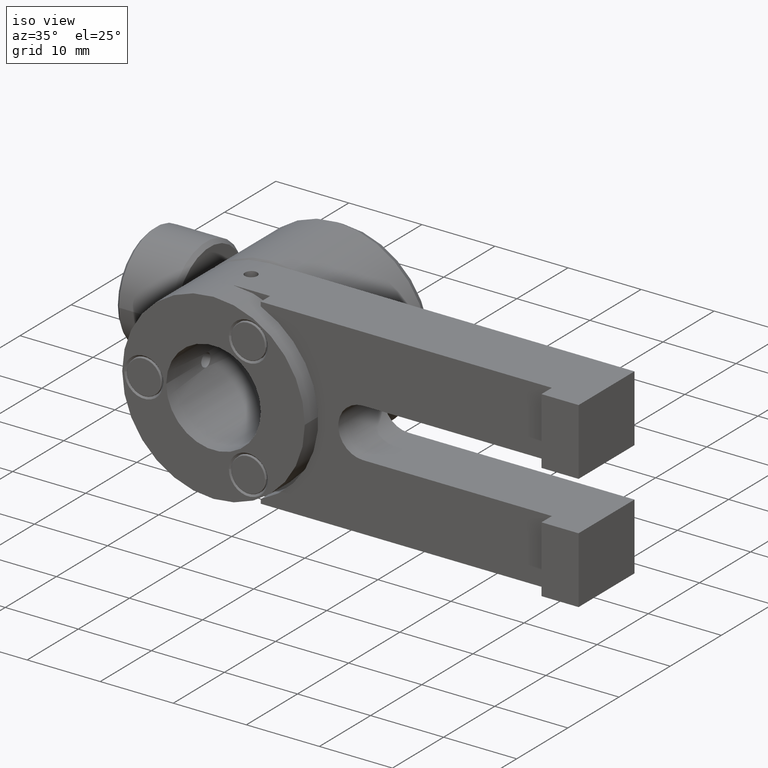
[diagram: clean part render]
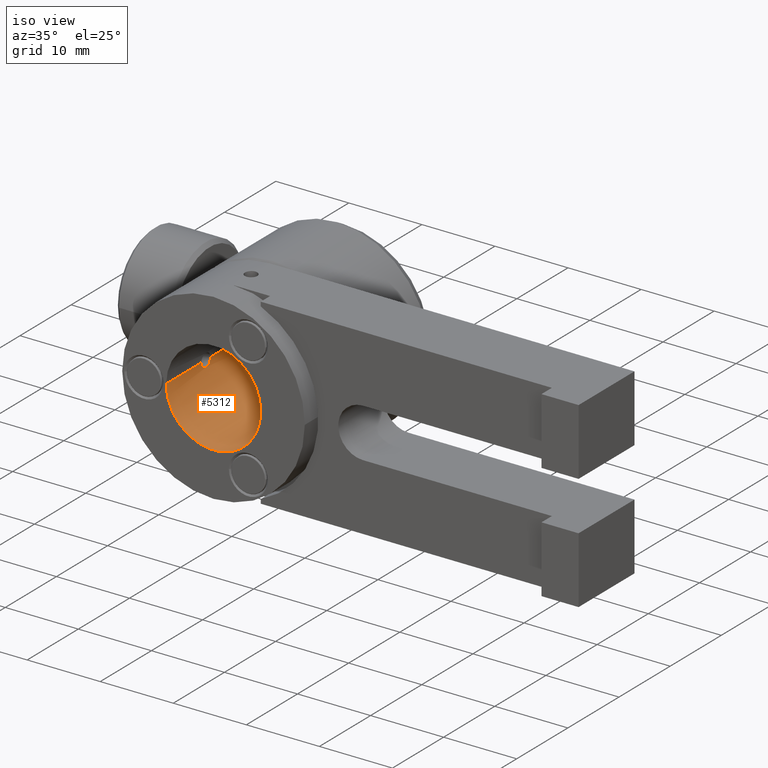
[diagram: same view with one face highlighted and labeled with its STEP entity id]
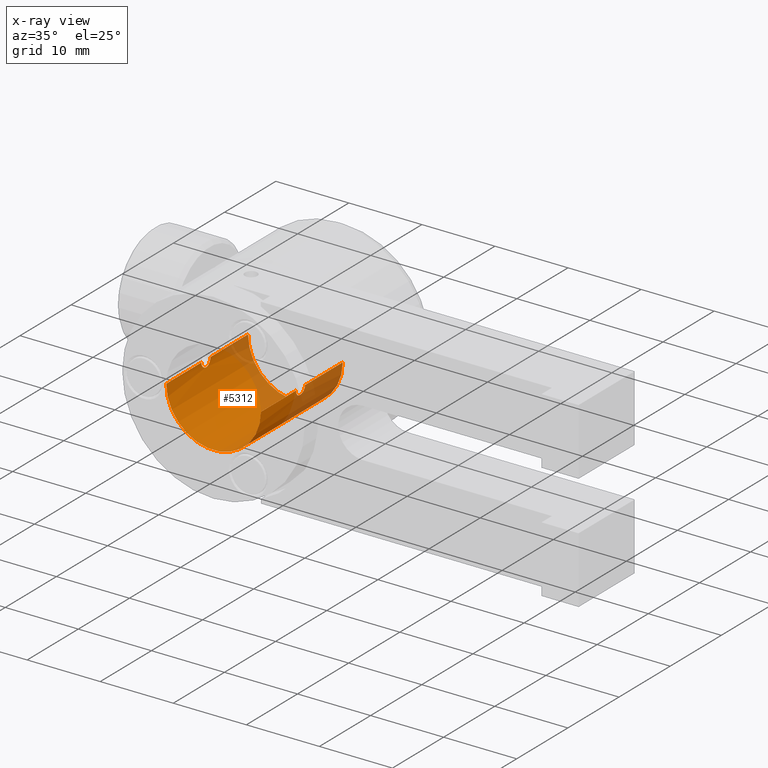
[diagram: x-ray of the same camera — body ghosted, the highlighted face saturated]
A machine part, iso view. The second image highlights one B-rep face of the part: STEP entity #5312.
The next image is the same camera in x-ray: the body ghosted, the highlighted face saturated — about 24% of this face is hidden behind the body in this view.
In plain terms, the highlighted cylindrical surface (partial cylindrical patch) has radius 6.477 mm, axis along (0, 1, 0).
Its self-contained STEP definition (entity closure, byte-faithful):
#13 = CARTESIAN_POINT ( 'NONE',  ( -2.350649786499912100, 3.439816570402018900, -0.2326646441831022900 ) ) ;
#176 = CARTESIAN_POINT ( 'NONE',  ( 10.56140071543600800, 3.119592693218902200, -0.7115586774158586500 ) ) ;
#194 = CARTESIAN_POINT ( 'NONE',  ( 10.54208502654246600, 2.806598565896670600, -0.8658817823050213300 ) ) ;
#207 = CARTESIAN_POINT ( 'NONE',  ( 10.60006664389255900, 3.462934787773486200, -6.101397910709939800E-013 ) ) ;
#281 = CARTESIAN_POINT ( 'NONE',  ( 4.123066643891380800, 10.82893478776489400, 1.457167719820518700E-013 ) ) ;
#315 = DIRECTION ( 'NONE',  ( 0.0000000000000000000, 1.000000000000000000, 0.0000000000000000000 ) ) ;
#352 = CARTESIAN_POINT ( 'NONE',  ( -2.295984162816225600, 2.340651364928596000, -0.8656286810699233000 ) ) ;
#399 = VERTEX_POINT ( 'NONE', #6591 ) ;
#412 = ORIENTED_EDGE ( 'NONE', *, *, #639, .F. ) ;
#532 = DIRECTION ( 'NONE',  ( 0.0000000000000000000, 1.000000000000000000, 0.0000000000000000000 ) ) ;
#618 = CARTESIAN_POINT ( 'NONE',  ( -2.353933356108619100, 10.82893478776489400, -8.437002138594873400E-014 ) ) ;
#639 = EDGE_CURVE ( 'NONE', #5854, #399, #4913, .T. ) ;
#817 = CARTESIAN_POINT ( 'NONE',  ( 10.53876676157147700, 2.573934787764893300, -0.8889999999996226500 ) ) ;
#884 = EDGE_CURVE ( 'NONE', #6459, #6173, #3382, .T. ) ;
#901 = CARTESIAN_POINT ( 'NONE',  ( -2.353933356108619100, 1.684934787764897000, -8.433794940138831300E-014 ) ) ;
#932 = B_SPLINE_CURVE_WITH_KNOTS ( 'NONE', 3,
 ( #2225, #5083, #2249, #4470, #3399, #1623, #5587, #13, #3959, #4538 ),
 .UNSPECIFIED., .F., .F.,
 ( 4, 2, 2, 2, 4 ),
 ( 0.001391681021688470100, 0.001739436585783829900, 0.002087192149879189700, 0.002434947713974549900, 0.002782703278069909600 ),
 .UNSPECIFIED. ) ;
#1152 = CARTESIAN_POINT ( 'NONE',  ( -2.353933356108619100, -5.173065212235105300, -8.437002138594873400E-014 ) ) ;
#1154 = CARTESIAN_POINT ( 'NONE',  ( -2.353933356110145400, 3.462934787776023300, -1.396743876756858700E-012 ) ) ;
#1295 = CARTESIAN_POINT ( 'NONE',  ( 10.57756416844688000, 3.285366602814805400, -0.5458232989944384900 ) ) ;
#1446 = CARTESIAN_POINT ( 'NONE',  ( -2.315342460842459100, 2.027529981182903700, -0.7107662629022814000 ) ) ;
#1452 = EDGE_CURVE ( 'NONE', #399, #6173, #3769, .T. ) ;
#1567 = EDGE_CURVE ( 'NONE', #5854, #5016, #6142, .T. ) ;
#1623 = CARTESIAN_POINT ( 'NONE',  ( -2.331444659362095000, 3.285489353846622300, -0.5456630955220790300 ) ) ;
#1655 = ORIENTED_EDGE ( 'NONE', *, *, #884, .T. ) ;
#1745 = DIRECTION ( 'NONE',  ( 0.0000000000000000000, 1.000000000000000000, 0.0000000000000000000 ) ) ;
#1927 = CARTESIAN_POINT ( 'NONE',  ( 10.60006664389135400, 3.462934787764695400, -0.1160958163433591200 ) ) ;
#2011 = EDGE_CURVE ( 'NONE', #2864, #5446, #7095, .T. ) ;
#2093 = CARTESIAN_POINT ( 'NONE',  ( 10.57746346457863300, 1.863518528122982700, -0.5468734685551206500 ) ) ;
#2168 = VECTOR ( 'NONE', #3482, 1000.000000000000000 ) ;
#2225 = CARTESIAN_POINT ( 'NONE',  ( -2.292633473787409700, 2.573934787764406100, -0.8890000000090452200 ) ) ;
#2240 = CARTESIAN_POINT ( 'NONE',  ( 10.54211620212188700, 2.340669037810438900, -0.8656388751137895600 ) ) ;
#2249 = CARTESIAN_POINT ( 'NONE',  ( -2.295949454246609000, 2.806579105618423100, -0.8659013694511149600 ) ) ;
#2436 = CARTESIAN_POINT ( 'NONE',  ( 10.53876676157147900, 2.690018313488122800, -0.8889999999996225400 ) ) ;
#2443 = VERTEX_POINT ( 'NONE', #7077 ) ;
#2463 = VECTOR ( 'NONE', #532, 1000.000000000000000 ) ;
#2622 = B_SPLINE_CURVE_WITH_KNOTS ( 'NONE', 3,
 ( #901, #2651, #6641, #7184, #4309, #1446, #5484, #352, #6013, #3798 ),
 .UNSPECIFIED., .F., .F.,
 ( 4, 2, 2, 2, 4 ),
 ( 3.116236741932552800E-020, 0.0003479202554221178000, 0.0006958405108442354900, 0.001043760766266352800, 0.001391681021688470100 ),
 .UNSPECIFIED. ) ;
#2631 = CARTESIAN_POINT ( 'NONE',  ( 10.59677290552062200, 1.708122718052808700, -0.2330062151327999000 ) ) ;
#2651 = CARTESIAN_POINT ( 'NONE',  ( -2.353933356108614600, 1.684934787764897000, -0.1176538529103875300 ) ) ;
#2698 = LINE ( 'NONE', #3988, #2168 ) ;
#2709 = EDGE_LOOP ( 'NONE', ( #4205, #1655, #6841, #412, #4314, #3253, #5856, #7151, #4045, #5008 ) ) ;
#2790 = CARTESIAN_POINT ( 'NONE',  ( 10.58542393949339600, 1.797520211509415300, -0.4484449153770192500 ) ) ;
#2864 = VERTEX_POINT ( 'NONE', #1152 ) ;
#2917 = EDGE_CURVE ( 'NONE', #2443, #6089, #932, .T. ) ;
#3070 = CARTESIAN_POINT ( 'NONE',  ( 10.59678535939234600, 3.439836217591347300, -0.2326448646585872200 ) ) ;
#3184 = CARTESIAN_POINT ( 'NONE',  ( 10.53876676157147700, 2.573934787764893300, -0.8889999999996226500 ) ) ;
#3212 = CARTESIAN_POINT ( 'NONE',  ( 10.56147533571487600, 2.027528870873269700, -0.7107759327374647600 ) ) ;
#3253 = ORIENTED_EDGE ( 'NONE', *, *, #6742, .T. ) ;
#3382 = LINE ( 'NONE', #6941, #3984 ) ;
#3399 = CARTESIAN_POINT ( 'NONE',  ( -2.315281350966472900, 3.119754024852675800, -0.7114348000705564800 ) ) ;
#3422 = EDGE_CURVE ( 'NONE', #5446, #2443, #2622, .T. ) ;
#3464 = AXIS2_PLACEMENT_3D ( 'NONE', #281, #5377, #3643 ) ;
#3482 = DIRECTION ( 'NONE',  ( 0.0000000000000000000, 1.000000000000000000, 0.0000000000000000000 ) ) ;
#3628 = CARTESIAN_POINT ( 'NONE',  ( 10.55348117825176100, 3.021781324600053800, -0.7767349445126644500 ) ) ;
#3643 = DIRECTION ( 'NONE',  ( -1.000000000000000000, 0.0000000000000000000, -3.552366734105304900E-014 ) ) ;
#3666 = DIRECTION ( 'NONE',  ( 0.0000000000000000000, 1.000000000000000000, 0.0000000000000000000 ) ) ;
#3769 = B_SPLINE_CURVE_WITH_KNOTS ( 'NONE', 3,
 ( #3184, #6203, #2240, #6228, #3212, #2093, #2790, #2631, #5651, #4318 ),
 .UNSPECIFIED., .F., .F.,
 ( 4, 2, 2, 2, 4 ),
 ( 0.002782701282795828300, 0.003130604781071176000, 0.003478508279346524200, 0.003826411777621871900, 0.004174315275897219600 ),
 .UNSPECIFIED. ) ;
#3798 = CARTESIAN_POINT ( 'NONE',  ( -2.292633473787409700, 2.573934787764406100, -0.8890000000090452200 ) ) ;
#3834 = CIRCLE ( 'NONE', #4879, 6.477000000000000300 ) ;
#3959 = CARTESIAN_POINT ( 'NONE',  ( -2.353933356108578700, 3.462934787764639000, -0.1160834768496296900 ) ) ;
#3978 = CARTESIAN_POINT ( 'NONE',  ( -2.353933356108619100, 10.82893478776489400, -8.437002138594873400E-014 ) ) ;
#3984 = VECTOR ( 'NONE', #6894, 1000.000000000000000 ) ;
#3988 = CARTESIAN_POINT ( 'NONE',  ( -2.353933356108619100, 10.82893478776489400, -8.437002138594873400E-014 ) ) ;
#4045 = ORIENTED_EDGE ( 'NONE', *, *, #3422, .F. ) ;
#4129 = EDGE_CURVE ( 'NONE', #6089, #4130, #2698, .T. ) ;
#4130 = VERTEX_POINT ( 'NONE', #618 ) ;
#4205 = ORIENTED_EDGE ( 'NONE', *, *, #4235, .F. ) ;
#4235 = EDGE_CURVE ( 'NONE', #6459, #2864, #3834, .T. ) ;
#4298 = CARTESIAN_POINT ( 'NONE',  ( 10.60006664389137900, -5.173065212235105300, 3.765967690818601100E-013 ) ) ;
#4309 = CARTESIAN_POINT ( 'NONE',  ( -2.331321698447613900, 1.863600157849001800, -0.5469658185647463500 ) ) ;
#4314 = ORIENTED_EDGE ( 'NONE', *, *, #1567, .T. ) ;
#4318 = CARTESIAN_POINT ( 'NONE',  ( 10.60006664389137900, 1.684934787764896800, 3.765967690818600100E-013 ) ) ;
#4470 = CARTESIAN_POINT ( 'NONE',  ( -2.307358124755231300, 3.021950876425407300, -0.7766531687620728000 ) ) ;
#4538 = CARTESIAN_POINT ( 'NONE',  ( -2.353933356110145400, 3.462934787776023300, -1.396743876756858700E-012 ) ) ;
#4598 = CARTESIAN_POINT ( 'NONE',  ( 10.60006664389138100, 10.82893478776489400, 3.765967690818602100E-013 ) ) ;
#4612 = VECTOR ( 'NONE', #1745, 1000.000000000000000 ) ;
#4879 = AXIS2_PLACEMENT_3D ( 'NONE', #5917, #3666, #6579 ) ;
#4913 = B_SPLINE_CURVE_WITH_KNOTS ( 'NONE', 3,
 ( #7014, #1927, #3070, #6496, #1295, #176, #3628, #194, #2436, #817 ),
 .UNSPECIFIED., .F., .F.,
 ( 4, 2, 2, 2, 4 ),
 ( 0.001391679286587575300, 0.001739434785639638400, 0.002087190284691701700, 0.002434945783743765200, 0.002782701282795828300 ),
 .UNSPECIFIED. ) ;
#5008 = ORIENTED_EDGE ( 'NONE', *, *, #2011, .F. ) ;
#5016 = VERTEX_POINT ( 'NONE', #6735 ) ;
#5083 = CARTESIAN_POINT ( 'NONE',  ( -2.292633473788652200, 2.690029918220298900, -0.8890000000000740600 ) ) ;
#5312 = ADVANCED_FACE ( 'NONE', ( #6501 ), #7028, .F. ) ;
#5377 = DIRECTION ( 'NONE',  ( 0.0000000000000000000, 1.000000000000000000, 0.0000000000000000000 ) ) ;
#5446 = VERTEX_POINT ( 'NONE', #5491 ) ;
#5484 = CARTESIAN_POINT ( 'NONE',  ( -2.307317970403978300, 2.126660616765645000, -0.7769684580586236900 ) ) ;
#5491 = CARTESIAN_POINT ( 'NONE',  ( -2.353933356108619100, 1.684934787764897000, -8.433794940138831300E-014 ) ) ;
#5587 = CARTESIAN_POINT ( 'NONE',  ( -2.339329763125724200, 3.350667793251574700, -0.4478503503887892300 ) ) ;
#5651 = CARTESIAN_POINT ( 'NONE',  ( 10.60006664389138300, 1.684934787764896600, -0.1175684763302868600 ) ) ;
#5781 = CARTESIAN_POINT ( 'NONE',  ( 10.60006664389137900, 1.684934787764896800, 3.765967690818600100E-013 ) ) ;
#5854 = VERTEX_POINT ( 'NONE', #207 ) ;
#5856 = ORIENTED_EDGE ( 'NONE', *, *, #4129, .F. ) ;
#5917 = CARTESIAN_POINT ( 'NONE',  ( 4.123066643891380800, -5.173065212235105300, 1.457167719820518700E-013 ) ) ;
#6013 = CARTESIAN_POINT ( 'NONE',  ( -2.292633473788650900, 2.457784676561466200, -0.8890000000000825000 ) ) ;
#6089 = VERTEX_POINT ( 'NONE', #1154 ) ;
#6126 = CIRCLE ( 'NONE', #3464, 6.477000000000000300 ) ;
#6142 = LINE ( 'NONE', #4598, #4612 ) ;
#6173 = VERTEX_POINT ( 'NONE', #5781 ) ;
#6203 = CARTESIAN_POINT ( 'NONE',  ( 10.53876676157147500, 2.457801858734772100, -0.8889999999996226500 ) ) ;
#6228 = CARTESIAN_POINT ( 'NONE',  ( 10.55345449918673000, 2.126605324603221700, -0.7769426771632751400 ) ) ;
#6408 = AXIS2_PLACEMENT_3D ( 'NONE', #7113, #315, #6494 ) ;
#6459 = VERTEX_POINT ( 'NONE', #4298 ) ;
#6494 = DIRECTION ( 'NONE',  ( -1.000000000000000000, 0.0000000000000000000, -3.552366734105304900E-014 ) ) ;
#6496 = CARTESIAN_POINT ( 'NONE',  ( 10.58545291890307800, 3.350586348123523600, -0.4480192775091839100 ) ) ;
#6501 = FACE_OUTER_BOUND ( 'NONE', #2709, .T. ) ;
#6579 = DIRECTION ( 'NONE',  ( -1.000000000000000000, 0.0000000000000000000, -3.552366734105304900E-014 ) ) ;
#6591 = CARTESIAN_POINT ( 'NONE',  ( 10.53876676157147700, 2.573934787764893300, -0.8889999999996226500 ) ) ;
#6641 = CARTESIAN_POINT ( 'NONE',  ( -2.350635326720939700, 1.708155931829948800, -0.2330960469464736800 ) ) ;
#6735 = CARTESIAN_POINT ( 'NONE',  ( 10.60006664389137900, 10.82893478776489400, 3.765967690818601100E-013 ) ) ;
#6742 = EDGE_CURVE ( 'NONE', #5016, #4130, #6126, .T. ) ;
#6841 = ORIENTED_EDGE ( 'NONE', *, *, #1452, .F. ) ;
#6894 = DIRECTION ( 'NONE',  ( 0.0000000000000000000, 1.000000000000000000, 0.0000000000000000000 ) ) ;
#6941 = CARTESIAN_POINT ( 'NONE',  ( 10.60006664389138100, 10.82893478776489400, 3.765967690818602100E-013 ) ) ;
#7014 = CARTESIAN_POINT ( 'NONE',  ( 10.60006664389255900, 3.462934787773486200, -6.101397910709939800E-013 ) ) ;
#7028 = CYLINDRICAL_SURFACE ( 'NONE', #6408, 6.477000000000000300 ) ;
#7077 = CARTESIAN_POINT ( 'NONE',  ( -2.292633473787409700, 2.573934787764406100, -0.8890000000090452200 ) ) ;
#7095 = LINE ( 'NONE', #3978, #2463 ) ;
#7113 = CARTESIAN_POINT ( 'NONE',  ( 4.123066643891380800, 10.82893478776489400, 1.457167719820518700E-013 ) ) ;
#7151 = ORIENTED_EDGE ( 'NONE', *, *, #2917, .F. ) ;
#7184 = CARTESIAN_POINT ( 'NONE',  ( -2.339292157386634800, 1.797508938420797000, -0.4484079559468456300 ) ) ;